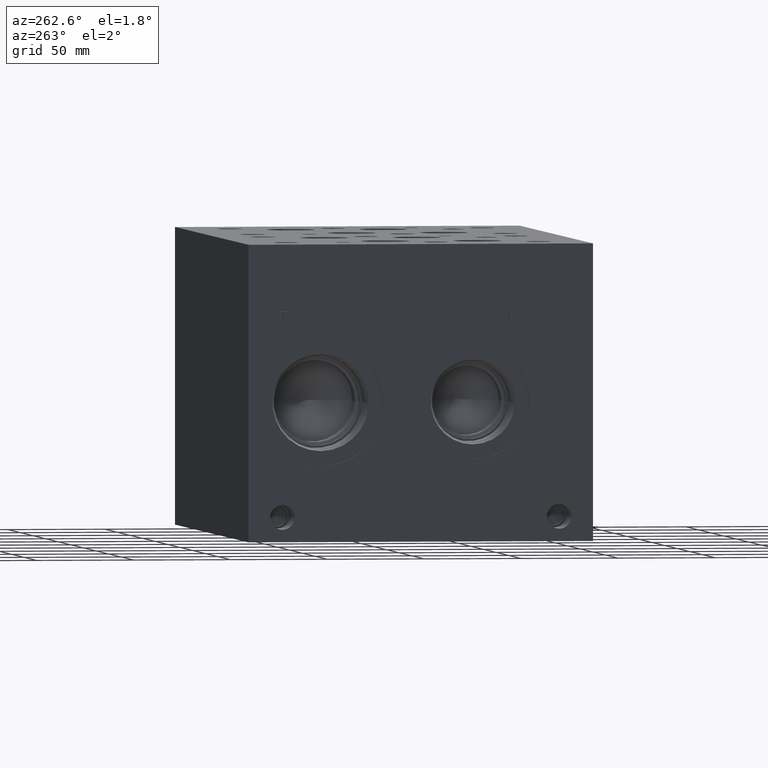
[diagram: clean part render]
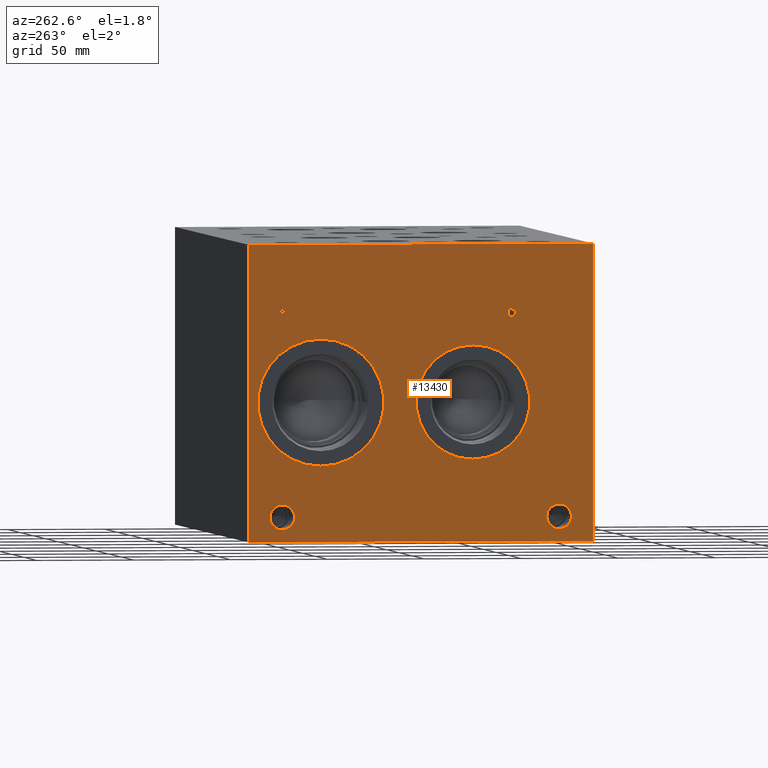
[diagram: same view with one face highlighted and labeled with its STEP entity id]
A machine part, auxiliary view. The second image highlights one B-rep face of the part: STEP entity #13430.
In plain terms, the highlighted planar face has unit normal (-1, 0, 0).
Its self-contained STEP definition (entity closure, byte-faithful):
#211=CIRCLE('',#14152,32.5628);
#212=CIRCLE('',#14153,32.5628);
#213=CIRCLE('',#14154,29.2862);
#214=CIRCLE('',#14155,29.2862);
#215=CIRCLE('',#14156,6.35);
#216=CIRCLE('',#14157,6.35);
#217=CIRCLE('',#14158,6.35);
#218=CIRCLE('',#14159,6.35);
#716=B_SPLINE_CURVE_WITH_KNOTS('',2,(#20095,#20096,#20097,#20098),
 .UNSPECIFIED.,.F.,.F.,(3,1,3),(0.,1.,2.),.UNSPECIFIED.);
#718=B_SPLINE_CURVE_WITH_KNOTS('',2,(#20116,#20117,#20118,#20119),
 .UNSPECIFIED.,.F.,.F.,(3,1,3),(0.,1.,2.),.UNSPECIFIED.);
#720=B_SPLINE_CURVE_WITH_KNOTS('',2,(#20165,#20166,#20167,#20168),
 .UNSPECIFIED.,.F.,.F.,(3,1,3),(0.,1.,2.),.UNSPECIFIED.);
#722=B_SPLINE_CURVE_WITH_KNOTS('',2,(#20183,#20184,#20185,#20186),
 .UNSPECIFIED.,.F.,.F.,(3,1,3),(0.,1.,2.),.UNSPECIFIED.);
#1102=FACE_BOUND('',#2089,.T.);
#1103=FACE_BOUND('',#2090,.T.);
#1104=FACE_BOUND('',#2091,.T.);
#1105=FACE_BOUND('',#2092,.T.);
#1106=FACE_BOUND('',#2093,.T.);
#1107=FACE_BOUND('',#2094,.T.);
#1313=FACE_OUTER_BOUND('',#2088,.T.);
#2088=EDGE_LOOP('',(#9498,#9499,#9500,#9501));
#2089=EDGE_LOOP('',(#9502,#9503));
#2090=EDGE_LOOP('',(#9504,#9505));
#2091=EDGE_LOOP('',(#9506,#9507));
#2092=EDGE_LOOP('',(#9508,#9509));
#2093=EDGE_LOOP('',(#9510,#9511,#9512,#9513,#9514,#9515,#9516,#9517));
#2094=EDGE_LOOP('',(#9518,#9519,#9520,#9521,#9522,#9523,#9524,#9525,#9526));
#2841=LINE('',#18479,#4081);
#3213=LINE('',#20128,#4453);
#3216=LINE('',#20134,#4456);
#3219=LINE('',#20140,#4459);
#3222=LINE('',#20146,#4462);
#3225=LINE('',#20152,#4465);
#3229=LINE('',#20194,#4469);
#3230=LINE('',#20196,#4470);
#3231=LINE('',#20197,#4471);
#3232=LINE('',#20216,#4472);
#3233=LINE('',#20218,#4473);
#3234=LINE('',#20220,#4474);
#3235=LINE('',#20222,#4475);
#3236=LINE('',#20224,#4476);
#3237=LINE('',#20226,#4477);
#3238=LINE('',#20228,#4478);
#3239=LINE('',#20229,#4479);
#4081=VECTOR('',#15095,10.);
#4453=VECTOR('',#15629,10.);
#4456=VECTOR('',#15634,10.);
#4459=VECTOR('',#15639,10.);
#4462=VECTOR('',#15644,10.);
#4465=VECTOR('',#15649,10.);
#4469=VECTOR('',#15657,10.);
#4470=VECTOR('',#15658,10.);
#4471=VECTOR('',#15659,10.);
#4472=VECTOR('',#15676,10.);
#4473=VECTOR('',#15677,10.);
#4474=VECTOR('',#15678,10.);
#4475=VECTOR('',#15679,10.);
#4476=VECTOR('',#15680,10.);
#4477=VECTOR('',#15681,10.);
#4478=VECTOR('',#15682,10.);
#4479=VECTOR('',#15683,10.);
#5314=VERTEX_POINT('',#18472);
#5317=VERTEX_POINT('',#18477);
#5759=VERTEX_POINT('',#20093);
#5760=VERTEX_POINT('',#20094);
#5763=VERTEX_POINT('',#20115);
#5765=VERTEX_POINT('',#20127);
#5767=VERTEX_POINT('',#20133);
#5769=VERTEX_POINT('',#20139);
#5771=VERTEX_POINT('',#20145);
#5773=VERTEX_POINT('',#20151);
#5775=VERTEX_POINT('',#20164);
#5777=VERTEX_POINT('',#20193);
#5778=VERTEX_POINT('',#20195);
#5779=VERTEX_POINT('',#20198);
#5780=VERTEX_POINT('',#20199);
#5781=VERTEX_POINT('',#20202);
#5782=VERTEX_POINT('',#20203);
#5783=VERTEX_POINT('',#20206);
#5784=VERTEX_POINT('',#20207);
#5785=VERTEX_POINT('',#20210);
#5786=VERTEX_POINT('',#20211);
#5787=VERTEX_POINT('',#20214);
#5788=VERTEX_POINT('',#20215);
#5789=VERTEX_POINT('',#20217);
#5790=VERTEX_POINT('',#20219);
#5791=VERTEX_POINT('',#20221);
#5792=VERTEX_POINT('',#20223);
#5793=VERTEX_POINT('',#20225);
#5794=VERTEX_POINT('',#20227);
#6692=EDGE_CURVE('',#5314,#5317,#2841,.T.);
#7210=EDGE_CURVE('',#5759,#5760,#716,.T.);
#7214=EDGE_CURVE('',#5763,#5759,#718,.T.);
#7217=EDGE_CURVE('',#5765,#5763,#3213,.T.);
#7220=EDGE_CURVE('',#5767,#5765,#3216,.T.);
#7223=EDGE_CURVE('',#5769,#5767,#3219,.T.);
#7226=EDGE_CURVE('',#5771,#5769,#3222,.T.);
#7229=EDGE_CURVE('',#5773,#5771,#3225,.T.);
#7232=EDGE_CURVE('',#5775,#5773,#720,.T.);
#7235=EDGE_CURVE('',#5760,#5775,#722,.T.);
#7237=EDGE_CURVE('',#5777,#5314,#3229,.T.);
#7238=EDGE_CURVE('',#5778,#5317,#3230,.T.);
#7239=EDGE_CURVE('',#5777,#5778,#3231,.T.);
#7240=EDGE_CURVE('',#5779,#5780,#211,.T.);
#7241=EDGE_CURVE('',#5780,#5779,#212,.T.);
#7242=EDGE_CURVE('',#5781,#5782,#213,.T.);
#7243=EDGE_CURVE('',#5782,#5781,#214,.T.);
#7244=EDGE_CURVE('',#5783,#5784,#215,.T.);
#7245=EDGE_CURVE('',#5784,#5783,#216,.T.);
#7246=EDGE_CURVE('',#5785,#5786,#217,.T.);
#7247=EDGE_CURVE('',#5786,#5785,#218,.T.);
#7248=EDGE_CURVE('',#5787,#5788,#3232,.T.);
#7249=EDGE_CURVE('',#5788,#5789,#3233,.T.);
#7250=EDGE_CURVE('',#5789,#5790,#3234,.T.);
#7251=EDGE_CURVE('',#5790,#5791,#3235,.T.);
#7252=EDGE_CURVE('',#5791,#5792,#3236,.T.);
#7253=EDGE_CURVE('',#5792,#5793,#3237,.T.);
#7254=EDGE_CURVE('',#5793,#5794,#3238,.T.);
#7255=EDGE_CURVE('',#5794,#5787,#3239,.T.);
#9498=ORIENTED_EDGE('',*,*,#7237,.T.);
#9499=ORIENTED_EDGE('',*,*,#6692,.T.);
#9500=ORIENTED_EDGE('',*,*,#7238,.F.);
#9501=ORIENTED_EDGE('',*,*,#7239,.F.);
#9502=ORIENTED_EDGE('',*,*,#7240,.T.);
#9503=ORIENTED_EDGE('',*,*,#7241,.T.);
#9504=ORIENTED_EDGE('',*,*,#7242,.T.);
#9505=ORIENTED_EDGE('',*,*,#7243,.T.);
#9506=ORIENTED_EDGE('',*,*,#7244,.T.);
#9507=ORIENTED_EDGE('',*,*,#7245,.T.);
#9508=ORIENTED_EDGE('',*,*,#7246,.T.);
#9509=ORIENTED_EDGE('',*,*,#7247,.T.);
#9510=ORIENTED_EDGE('',*,*,#7248,.T.);
#9511=ORIENTED_EDGE('',*,*,#7249,.T.);
#9512=ORIENTED_EDGE('',*,*,#7250,.T.);
#9513=ORIENTED_EDGE('',*,*,#7251,.T.);
#9514=ORIENTED_EDGE('',*,*,#7252,.T.);
#9515=ORIENTED_EDGE('',*,*,#7253,.T.);
#9516=ORIENTED_EDGE('',*,*,#7254,.T.);
#9517=ORIENTED_EDGE('',*,*,#7255,.T.);
#9518=ORIENTED_EDGE('',*,*,#7210,.T.);
#9519=ORIENTED_EDGE('',*,*,#7235,.T.);
#9520=ORIENTED_EDGE('',*,*,#7232,.T.);
#9521=ORIENTED_EDGE('',*,*,#7229,.T.);
#9522=ORIENTED_EDGE('',*,*,#7226,.T.);
#9523=ORIENTED_EDGE('',*,*,#7223,.T.);
#9524=ORIENTED_EDGE('',*,*,#7220,.T.);
#9525=ORIENTED_EDGE('',*,*,#7217,.T.);
#9526=ORIENTED_EDGE('',*,*,#7214,.T.);
#12504=PLANE('',#14151);
#13430=ADVANCED_FACE('',(#1313,#1102,#1103,#1104,#1105,#1106,#1107),#12504,
 .T.);
#14151=AXIS2_PLACEMENT_3D('',#20192,#15655,#15656);
#14152=AXIS2_PLACEMENT_3D('',#20200,#15660,#15661);
#14153=AXIS2_PLACEMENT_3D('',#20201,#15662,#15663);
#14154=AXIS2_PLACEMENT_3D('',#20204,#15664,#15665);
#14155=AXIS2_PLACEMENT_3D('',#20205,#15666,#15667);
#14156=AXIS2_PLACEMENT_3D('',#20208,#15668,#15669);
#14157=AXIS2_PLACEMENT_3D('',#20209,#15670,#15671);
#14158=AXIS2_PLACEMENT_3D('',#20212,#15672,#15673);
#14159=AXIS2_PLACEMENT_3D('',#20213,#15674,#15675);
#15095=DIRECTION('',(0.,0.,1.));
#15629=DIRECTION('',(0.,-1.,0.));
#15634=DIRECTION('',(0.,-4.19611858128769E-15,1.));
#15639=DIRECTION('',(0.,1.,0.));
#15644=DIRECTION('',(0.,3.75218139805004E-15,-1.));
#15649=DIRECTION('',(0.,1.,0.));
#15655=DIRECTION('center_axis',(-1.,0.,0.));
#15656=DIRECTION('ref_axis',(0.,-1.,0.));
#15657=DIRECTION('',(0.,-1.,0.));
#15658=DIRECTION('',(0.,-1.,0.));
#15659=DIRECTION('',(0.,0.,1.));
#15660=DIRECTION('center_axis',(1.,0.,0.));
#15661=DIRECTION('ref_axis',(0.,0.,1.));
#15662=DIRECTION('center_axis',(1.,0.,0.));
#15663=DIRECTION('ref_axis',(0.,0.,1.));
#15664=DIRECTION('center_axis',(1.,0.,0.));
#15665=DIRECTION('ref_axis',(0.,0.,1.));
#15666=DIRECTION('center_axis',(1.,0.,0.));
#15667=DIRECTION('ref_axis',(0.,0.,1.));
#15668=DIRECTION('center_axis',(1.,0.,0.));
#15669=DIRECTION('ref_axis',(0.,1.,0.));
#15670=DIRECTION('center_axis',(1.,0.,0.));
#15671=DIRECTION('ref_axis',(0.,1.,0.));
#15672=DIRECTION('center_axis',(1.,0.,0.));
#15673=DIRECTION('ref_axis',(0.,1.,0.));
#15674=DIRECTION('center_axis',(1.,0.,0.));
#15675=DIRECTION('ref_axis',(0.,1.,0.));
#15676=DIRECTION('',(0.,1.,0.));
#15677=DIRECTION('',(0.,0.,1.));
#15678=DIRECTION('',(0.,1.,8.33818088455555E-15));
#15679=DIRECTION('',(0.,0.,1.));
#15680=DIRECTION('',(0.,-1.,0.));
#15681=DIRECTION('',(0.,0.,-1.));
#15682=DIRECTION('',(0.,1.,0.));
#15683=DIRECTION('',(0.,0.,-1.));
#18472=CARTESIAN_POINT('',(0.,0.,0.));
#18477=CARTESIAN_POINT('',(0.,0.,152.4));
#18479=CARTESIAN_POINT('',(0.,0.,0.));
#20093=CARTESIAN_POINT('',(0.,40.5494327976406,118.666268143971));
#20094=CARTESIAN_POINT('',(0.,39.792990345468,117.148237372604));
#20095=CARTESIAN_POINT('Ctrl Pts',(0.,40.5494327976406,118.666268143971));
#20096=CARTESIAN_POINT('Ctrl Pts',(0.,40.1943679731514,118.424412393956));
#20097=CARTESIAN_POINT('Ctrl Pts',(0.,39.792990345468,117.678261675827));
#20098=CARTESIAN_POINT('Ctrl Pts',(0.,39.792990345468,117.148237372604));
#20115=CARTESIAN_POINT('',(0.,42.2115478456117,119.062499904633));
#20116=CARTESIAN_POINT('Ctrl Pts',(0.,42.2115478456117,119.062499904633));
#20117=CARTESIAN_POINT('Ctrl Pts',(0.,41.6455024732376,119.062499904633));
#20118=CARTESIAN_POINT('Ctrl Pts',(0.,40.853038951914,118.877248691856));
#20119=CARTESIAN_POINT('Ctrl Pts',(0.,40.5494327976406,118.666268143971));
#20127=CARTESIAN_POINT('',(0.,43.8067666223022,119.062499904633));
#20128=CARTESIAN_POINT('',(0.,110.803383311151,119.062499904633));
#20133=CARTESIAN_POINT('',(0.,43.8067666223022,112.7125));
#20134=CARTESIAN_POINT('',(0.,43.8067666223025,56.3562499999997));
#20139=CARTESIAN_POINT('',(0.,42.9628444307627,112.7125));
#20140=CARTESIAN_POINT('',(0.,110.381422215381,112.7125));
#20145=CARTESIAN_POINT('',(0.,42.9628444307627,115.079598829928));
#20146=CARTESIAN_POINT('',(0.,42.9628444307629,57.5397994149637));
#20151=CARTESIAN_POINT('',(0.,42.2475689147628,115.079598829928));
#20152=CARTESIAN_POINT('',(0.,110.023784457381,115.079598829928));
#20164=CARTESIAN_POINT('',(0.,40.3487439837989,115.73826980869));
#20165=CARTESIAN_POINT('Ctrl Pts',(0.,40.3487439837989,115.73826980869));
#20166=CARTESIAN_POINT('Ctrl Pts',(0.,40.6780794731802,115.414080186331));
#20167=CARTESIAN_POINT('Ctrl Pts',(0.,41.5683144679139,115.079598829928));
#20168=CARTESIAN_POINT('Ctrl Pts',(0.,42.2475689147628,115.079598829928));
#20183=CARTESIAN_POINT('Ctrl Pts',(0.,39.792990345468,117.148237372604));
#20184=CARTESIAN_POINT('Ctrl Pts',(0.,39.792990345468,116.736568010877));
#20185=CARTESIAN_POINT('Ctrl Pts',(0.,40.0863047656982,115.99556315977));
#20186=CARTESIAN_POINT('Ctrl Pts',(0.,40.3487439837989,115.73826980869));
#20192=CARTESIAN_POINT('Origin',(0.,177.8,0.));
#20193=CARTESIAN_POINT('',(0.,177.8,0.));
#20194=CARTESIAN_POINT('',(0.,177.8,0.));
#20195=CARTESIAN_POINT('',(0.,177.8,152.4));
#20196=CARTESIAN_POINT('',(0.,177.8,152.4));
#20197=CARTESIAN_POINT('',(0.,177.8,0.));
#20198=CARTESIAN_POINT('',(0.,140.4874,103.9876));
#20199=CARTESIAN_POINT('',(0.,140.4874,38.862));
#20200=CARTESIAN_POINT('Origin',(0.,140.4874,71.4248));
#20201=CARTESIAN_POINT('Origin',(0.,140.4874,71.4248));
#20202=CARTESIAN_POINT('',(0.,61.9252,100.711));
#20203=CARTESIAN_POINT('',(0.,61.9252,42.1386));
#20204=CARTESIAN_POINT('Origin',(0.,61.9252,71.4248));
#20205=CARTESIAN_POINT('Origin',(0.,61.9252,71.4248));
#20206=CARTESIAN_POINT('',(0.,166.6748,12.7));
#20207=CARTESIAN_POINT('',(0.,153.9748,12.7));
#20208=CARTESIAN_POINT('Origin',(0.,160.3248,12.7));
#20209=CARTESIAN_POINT('Origin',(0.,160.3248,12.7));
#20210=CARTESIAN_POINT('',(0.,23.8252,12.7));
#20211=CARTESIAN_POINT('',(0.,11.1252,12.7));
#20212=CARTESIAN_POINT('Origin',(0.,17.4752,12.7));
#20213=CARTESIAN_POINT('Origin',(0.,17.4752,12.7));
#20214=CARTESIAN_POINT('',(0.,159.749584728547,112.7125));
#20215=CARTESIAN_POINT('',(0.,160.593506920087,112.7125));
#20216=CARTESIAN_POINT('',(0.,168.774792364274,112.7125));
#20217=CARTESIAN_POINT('',(0.,160.593506920087,118.311203319482));
#20218=CARTESIAN_POINT('',(0.,160.593506920086,56.35625));
#20219=CARTESIAN_POINT('',(0.,162.723895867022,118.311203319482));
#20220=CARTESIAN_POINT('',(0.,169.196753460043,118.311203319482));
#20221=CARTESIAN_POINT('',(0.,162.723895867022,119.062499904633));
#20222=CARTESIAN_POINT('',(0.,162.723895867022,59.1556016597408));
#20223=CARTESIAN_POINT('',(0.,157.619195781612,119.062499904633));
#20224=CARTESIAN_POINT('',(0.,170.261947933511,119.062499904633));
#20225=CARTESIAN_POINT('',(0.,157.619195781612,118.311203319482));
#20226=CARTESIAN_POINT('',(0.,157.619195781612,59.5312499523163));
#20227=CARTESIAN_POINT('',(0.,159.749584728547,118.311203319482));
#20228=CARTESIAN_POINT('',(0.,167.709597890806,118.311203319482));
#20229=CARTESIAN_POINT('',(0.,159.749584728547,59.1556016597408));